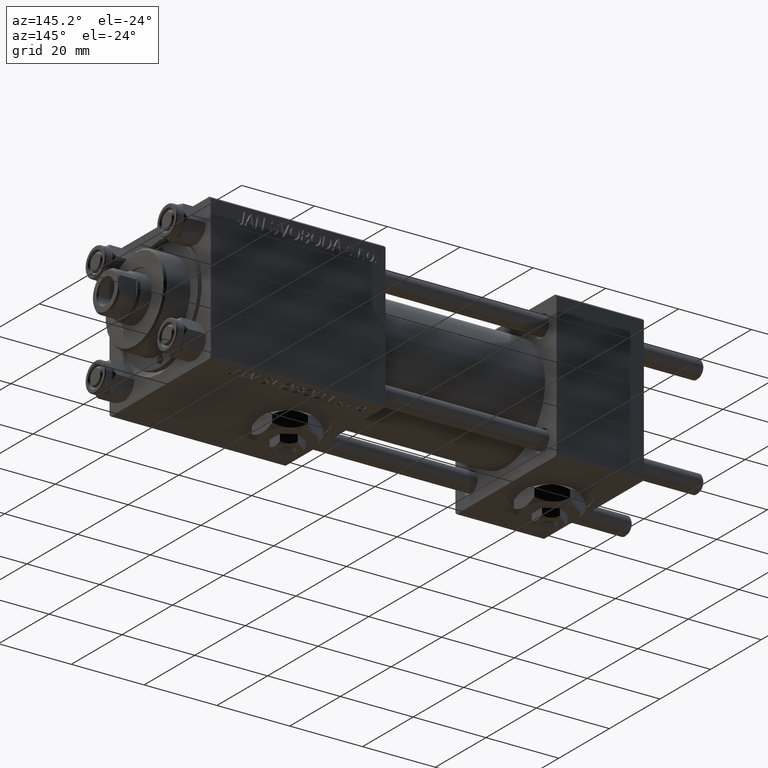
[diagram: clean part render]
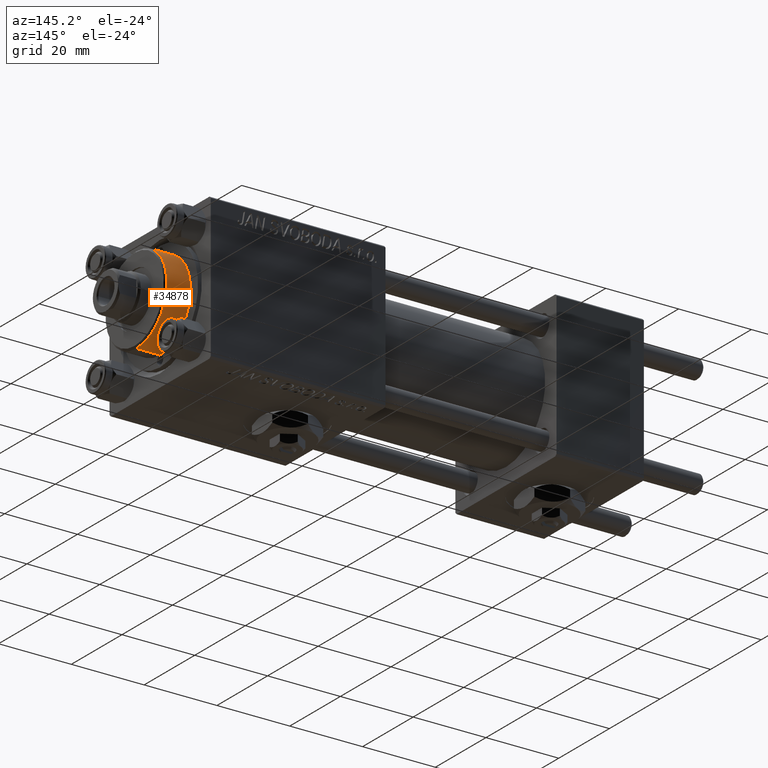
[diagram: same view with one face highlighted and labeled with its STEP entity id]
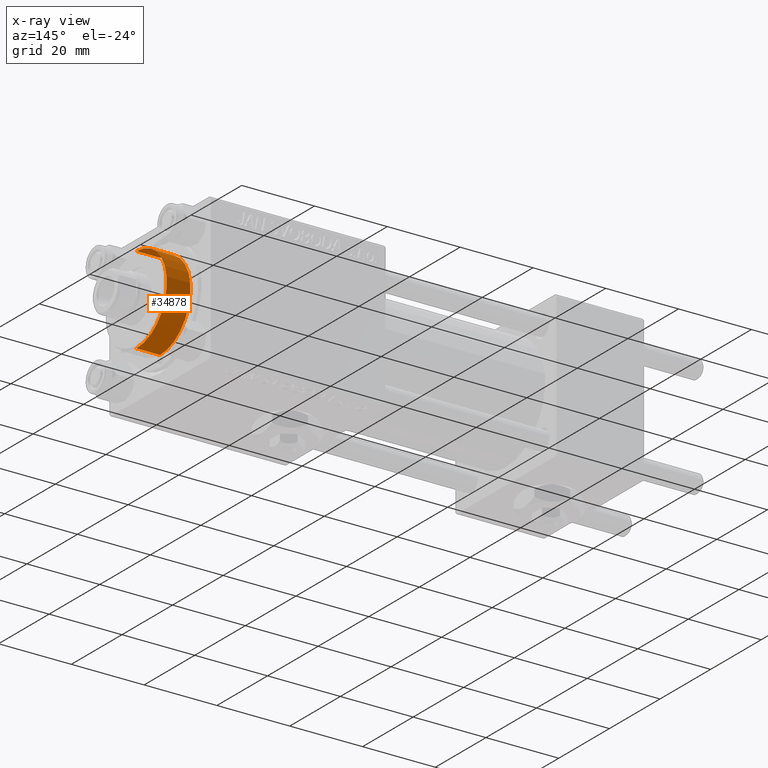
[diagram: x-ray of the same camera — body ghosted, the highlighted face saturated]
A machine part, auxiliary view. The second image highlights one B-rep face of the part: STEP entity #34878.
The next image is the same camera in x-ray: the body ghosted, the highlighted face saturated — about 0% of this face is hidden behind the body in this view.
In plain terms, the highlighted cylindrical surface (partial cylindrical patch) has radius 12 mm, axis along (-1, -0, 0).
Its self-contained STEP definition (entity closure, byte-faithful):
#1024 = DIRECTION ( 'NONE',  ( 1.000000000000000000, 0.000000000000000000, 0.000000000000000000 ) ) ;
#1238 = CARTESIAN_POINT ( 'NONE',  ( 12.00000000000000178, 1.469576158976824144E-15, 35.19999999999999574 ) ) ;
#1778 = DIRECTION ( 'NONE',  ( -1.000000000000000000, 0.000000000000000000, 0.000000000000000000 ) ) ;
#2034 = FACE_OUTER_BOUND ( 'NONE', #41643, .T. ) ;
#3110 = CIRCLE ( 'NONE', #13205, 12.00000000000000178 ) ;
#4476 = DIRECTION ( 'NONE',  ( 1.000000000000000000, 0.000000000000000000, 0.000000000000000000 ) ) ;
#4957 = CARTESIAN_POINT ( 'NONE',  ( 0.000000000000000000, 0.000000000000000000, 35.19999999999999574 ) ) ;
#6033 = CARTESIAN_POINT ( 'NONE',  ( -12.00000000000000178, 0.000000000000000000, 28.69999999999999929 ) ) ;
#6627 = VERTEX_POINT ( 'NONE', #17524 ) ;
#7502 = DIRECTION ( 'NONE',  ( -0.000000000000000000, -0.000000000000000000, -1.000000000000000000 ) ) ;
#7809 = VERTEX_POINT ( 'NONE', #16840 ) ;
#9386 = DIRECTION ( 'NONE',  ( -0.000000000000000000, -0.000000000000000000, -1.000000000000000000 ) ) ;
#11039 = EDGE_CURVE ( 'NONE', #6627, #19510, #27458, .T. ) ;
#13205 = AXIS2_PLACEMENT_3D ( 'NONE', #20774, #43458, #4476 ) ;
#14954 = DIRECTION ( 'NONE',  ( -0.000000000000000000, -0.000000000000000000, -1.000000000000000000 ) ) ;
#16401 = VERTEX_POINT ( 'NONE', #1238 ) ;
#16840 = CARTESIAN_POINT ( 'NONE',  ( 12.00000000000000178, 0.000000000000000000, 28.69999999999999929 ) ) ;
#17524 = CARTESIAN_POINT ( 'NONE',  ( -12.00000000000000178, 0.000000000000000000, 35.19999999999999574 ) ) ;
#18368 = EDGE_CURVE ( 'NONE', #16401, #7809, #34661, .T. ) ;
#19510 = VERTEX_POINT ( 'NONE', #6033 ) ;
#19851 = CIRCLE ( 'NONE', #49224, 12.00000000000000178 ) ;
#20361 = CARTESIAN_POINT ( 'NONE',  ( -12.00000000000000178, 0.000000000000000000, 35.70000000000000284 ) ) ;
#20774 = CARTESIAN_POINT ( 'NONE',  ( 0.000000000000000000, 0.000000000000000000, 28.69999999999999929 ) ) ;
#22057 = VECTOR ( 'NONE', #7502, 1000.000000000000000 ) ;
#23002 = EDGE_CURVE ( 'NONE', #6627, #16401, #19851, .T. ) ;
#25628 = VECTOR ( 'NONE', #14954, 1000.000000000000000 ) ;
#27458 = LINE ( 'NONE', #20361, #22057 ) ;
#27522 = EDGE_CURVE ( 'NONE', #7809, #19510, #3110, .T. ) ;
#31952 = ORIENTED_EDGE ( 'NONE', *, *, #27522, .T. ) ;
#33561 = CYLINDRICAL_SURFACE ( 'NONE', #41971, 12.00000000000000178 ) ;
#34661 = LINE ( 'NONE', #46489, #25628 ) ;
#34878 = ADVANCED_FACE ( 'NONE', ( #2034 ), #33561, .T. ) ;
#37009 = DIRECTION ( 'NONE',  ( 0.000000000000000000, 0.000000000000000000, -1.000000000000000000 ) ) ;
#37071 = ORIENTED_EDGE ( 'NONE', *, *, #11039, .F. ) ;
#37767 = CARTESIAN_POINT ( 'NONE',  ( 0.000000000000000000, 0.000000000000000000, 35.70000000000000284 ) ) ;
#41643 = EDGE_LOOP ( 'NONE', ( #42494, #49941, #31952, #37071 ) ) ;
#41971 = AXIS2_PLACEMENT_3D ( 'NONE', #37767, #9386, #1778 ) ;
#42494 = ORIENTED_EDGE ( 'NONE', *, *, #23002, .T. ) ;
#43458 = DIRECTION ( 'NONE',  ( 0.000000000000000000, 0.000000000000000000, 1.000000000000000000 ) ) ;
#46489 = CARTESIAN_POINT ( 'NONE',  ( 12.00000000000000178, 1.469576158976824144E-15, 35.70000000000000284 ) ) ;
#49224 = AXIS2_PLACEMENT_3D ( 'NONE', #4957, #37009, #1024 ) ;
#49941 = ORIENTED_EDGE ( 'NONE', *, *, #18368, .T. ) ;